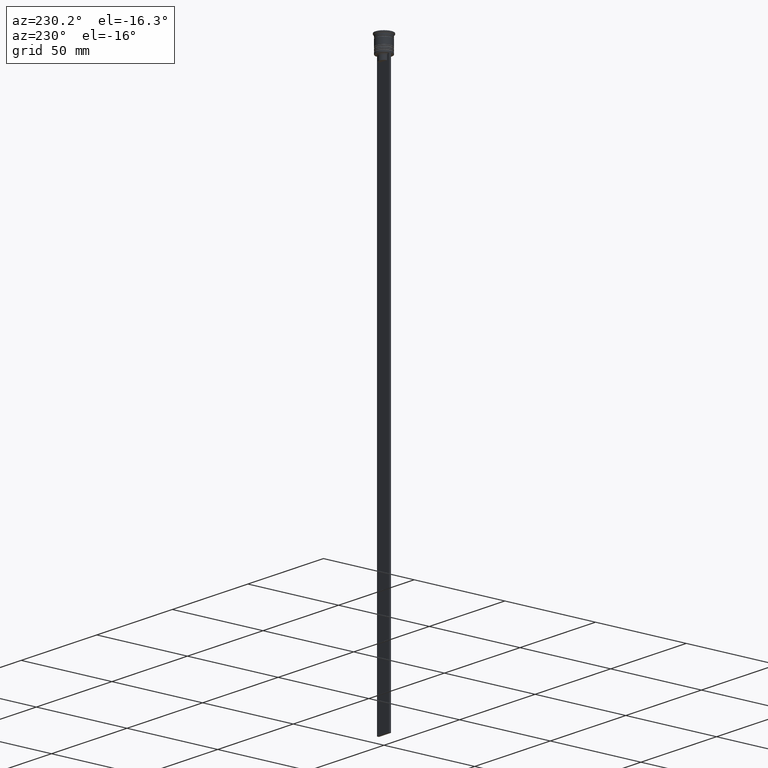
[diagram: clean part render]
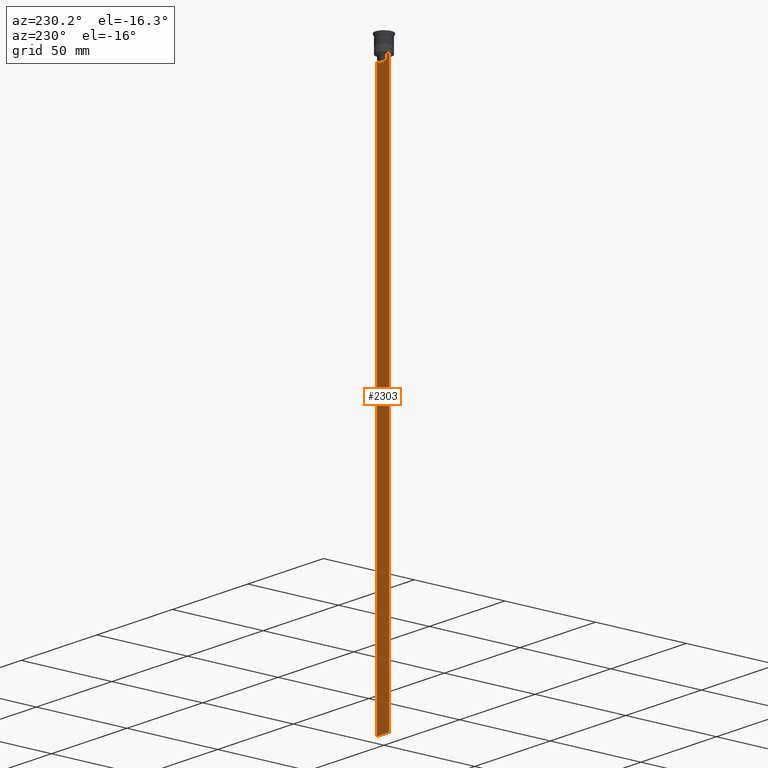
[diagram: same view with one face highlighted and labeled with its STEP entity id]
A machine part, auxiliary view. The second image highlights one B-rep face of the part: STEP entity #2303.
In plain terms, the highlighted planar face has unit normal (0, -1, -0).
Its self-contained STEP definition (entity closure, byte-faithful):
#11 = CARTESIAN_POINT ( 'NONE',  ( -3.110064308016796897, 0.4999999999999995559, -9.500000000000000000 ) ) ;
#17 = EDGE_CURVE ( 'NONE', #2202, #622, #85, .T. ) ;
#85 = LINE ( 'NONE', #1483, #173 ) ;
#92 = DIRECTION ( 'NONE',  ( -1.000000000000000000, 0.000000000000000000, 0.000000000000000000 ) ) ;
#106 = DIRECTION ( 'NONE',  ( 1.000000000000000000, 0.000000000000000000, 0.000000000000000000 ) ) ;
#158 = ORIENTED_EDGE ( 'NONE', *, *, #450, .F. ) ;
#159 = CARTESIAN_POINT ( 'NONE',  ( 4.000000000000005329, 0.4999999999999995559, -1.437742251701450202 ) ) ;
#169 = VERTEX_POINT ( 'NONE', #1027 ) ;
#173 = VECTOR ( 'NONE', #1311, 1000.000000000000000 ) ;
#180 = VECTOR ( 'NONE', #92, 1000.000000000000000 ) ;
#186 = VERTEX_POINT ( 'NONE', #1581 ) ;
#212 = ORIENTED_EDGE ( 'NONE', *, *, #1230, .T. ) ;
#279 = CARTESIAN_POINT ( 'NONE',  ( 4.000000000000005329, 0.4999999999999995559, -9.500000000000000000 ) ) ;
#351 = DIRECTION ( 'NONE',  ( 0.000000000000000000, 0.000000000000000000, -1.000000000000000000 ) ) ;
#364 = EDGE_CURVE ( 'NONE', #1944, #1057, #944, .T. ) ;
#413 = CARTESIAN_POINT ( 'NONE',  ( 0.000000000000000000, 0.4999999999999995559, -12.50000000000000000 ) ) ;
#422 = CARTESIAN_POINT ( 'NONE',  ( -3.999999999999994671, 0.4999999999999997780, -9.500000000000000000 ) ) ;
#450 = EDGE_CURVE ( 'NONE', #2202, #2246, #1905, .T. ) ;
#468 = EDGE_LOOP ( 'NONE', ( #1778, #212, #1034, #561, #616, #1512, #1524, #1326, #699, #158 ) ) ;
#503 = B_SPLINE_CURVE_WITH_KNOTS ( 'NONE', 3,
 ( #11, #1825, #2004, #554 ),
 .UNSPECIFIED., .F., .F.,
 ( 4, 4 ),
 ( 0.005378271293598279809, 0.006090816219555997280 ),
 .UNSPECIFIED. ) ;
#520 = CARTESIAN_POINT ( 'NONE',  ( 2.602402735934617350, 0.4999999999999995559, -12.50000000000000000 ) ) ;
#554 = CARTESIAN_POINT ( 'NONE',  ( -2.602402735934617350, 0.4999999999999995559, -10.00000000000000178 ) ) ;
#561 = ORIENTED_EDGE ( 'NONE', *, *, #849, .T. ) ;
#616 = ORIENTED_EDGE ( 'NONE', *, *, #2214, .T. ) ;
#621 = LINE ( 'NONE', #1882, #1063 ) ;
#622 = VERTEX_POINT ( 'NONE', #1023 ) ;
#649 = CARTESIAN_POINT ( 'NONE',  ( 4.000000000000005329, 0.4999999999999995559, -1.437742251701450202 ) ) ;
#699 = ORIENTED_EDGE ( 'NONE', *, *, #2291, .T. ) ;
#718 = VECTOR ( 'NONE', #106, 1000.000000000000000 ) ;
#800 = AXIS2_PLACEMENT_3D ( 'NONE', #649, #1020, #1046 ) ;
#820 = CARTESIAN_POINT ( 'NONE',  ( 4.000000000000005329, 0.4999999999999995559, -309.5000000000000000 ) ) ;
#821 = LINE ( 'NONE', #1549, #1720 ) ;
#849 = EDGE_CURVE ( 'NONE', #169, #1205, #1132, .T. ) ;
#915 = B_SPLINE_CURVE_WITH_KNOTS ( 'NONE', 3,
 ( #2129, #2105, #1016, #2314 ),
 .UNSPECIFIED., .F., .F.,
 ( 4, 4 ),
 ( 0.01295151922336847637, 0.01367164596165162602 ),
 .UNSPECIFIED. ) ;
#944 = LINE ( 'NONE', #159, #1173 ) ;
#1016 = CARTESIAN_POINT ( 'NONE',  ( 2.941045828809989438, 0.4999999999999995559, -9.666875663357577864 ) ) ;
#1020 = DIRECTION ( 'NONE',  ( 0.000000000000000000, -1.000000000000000000, -0.000000000000000000 ) ) ;
#1023 = CARTESIAN_POINT ( 'NONE',  ( -3.110064308016796897, 0.4999999999999995559, -9.500000000000000000 ) ) ;
#1027 = CARTESIAN_POINT ( 'NONE',  ( -2.602402735934617350, 0.4999999999999995559, -12.50000000000000000 ) ) ;
#1032 = CARTESIAN_POINT ( 'NONE',  ( 2.602402735934617350, 0.4999999999999995559, -10.00000000000000178 ) ) ;
#1034 = ORIENTED_EDGE ( 'NONE', *, *, #2156, .T. ) ;
#1046 = DIRECTION ( 'NONE',  ( 0.000000000000000000, 0.000000000000000000, -1.000000000000000000 ) ) ;
#1057 = VERTEX_POINT ( 'NONE', #820 ) ;
#1063 = VECTOR ( 'NONE', #1325, 1000.000000000000000 ) ;
#1064 = VECTOR ( 'NONE', #1540, 1000.000000000000000 ) ;
#1132 = LINE ( 'NONE', #413, #1567 ) ;
#1173 = VECTOR ( 'NONE', #351, 1000.000000000000000 ) ;
#1202 = CARTESIAN_POINT ( 'NONE',  ( -3.999999999999994671, 0.4999999999999995559, -309.5000000000000000 ) ) ;
#1205 = VERTEX_POINT ( 'NONE', #520 ) ;
#1230 = EDGE_CURVE ( 'NONE', #622, #1701, #503, .T. ) ;
#1238 = LINE ( 'NONE', #279, #718 ) ;
#1311 = DIRECTION ( 'NONE',  ( 1.000000000000000000, 0.000000000000000000, 0.000000000000000000 ) ) ;
#1325 = DIRECTION ( 'NONE',  ( 0.000000000000000000, 0.000000000000000000, -1.000000000000000000 ) ) ;
#1326 = ORIENTED_EDGE ( 'NONE', *, *, #364, .T. ) ;
#1454 = VERTEX_POINT ( 'NONE', #1032 ) ;
#1483 = CARTESIAN_POINT ( 'NONE',  ( 4.000000000000005329, 0.4999999999999995559, -9.500000000000000000 ) ) ;
#1512 = ORIENTED_EDGE ( 'NONE', *, *, #1546, .T. ) ;
#1524 = ORIENTED_EDGE ( 'NONE', *, *, #2248, .T. ) ;
#1540 = DIRECTION ( 'NONE',  ( 0.000000000000000000, 0.000000000000000000, -1.000000000000000000 ) ) ;
#1546 = EDGE_CURVE ( 'NONE', #1454, #186, #915, .T. ) ;
#1549 = CARTESIAN_POINT ( 'NONE',  ( 2.602402735934617350, 0.4999999999999995559, 0.000000000000000000 ) ) ;
#1559 = LINE ( 'NONE', #1745, #180 ) ;
#1567 = VECTOR ( 'NONE', #1913, 1000.000000000000000 ) ;
#1581 = CARTESIAN_POINT ( 'NONE',  ( 3.110064308016796897, 0.4999999999999995559, -9.500000000000000000 ) ) ;
#1701 = VERTEX_POINT ( 'NONE', #2000 ) ;
#1720 = VECTOR ( 'NONE', #2290, 1000.000000000000000 ) ;
#1745 = CARTESIAN_POINT ( 'NONE',  ( 4.000000000000005329, 0.4999999999999995559, -309.5000000000000000 ) ) ;
#1749 = CARTESIAN_POINT ( 'NONE',  ( 4.000000000000005329, 0.4999999999999995559, -9.500000000000000000 ) ) ;
#1778 = ORIENTED_EDGE ( 'NONE', *, *, #17, .T. ) ;
#1825 = CARTESIAN_POINT ( 'NONE',  ( -2.941047749529105193, 0.4999999999999995559, -9.666873766989334982 ) ) ;
#1882 = CARTESIAN_POINT ( 'NONE',  ( -2.602402735934617350, 0.4999999999999995559, 0.000000000000000000 ) ) ;
#1905 = LINE ( 'NONE', #2273, #1064 ) ;
#1913 = DIRECTION ( 'NONE',  ( 1.000000000000000000, 0.000000000000000000, 0.000000000000000000 ) ) ;
#1942 = FACE_OUTER_BOUND ( 'NONE', #468, .T. ) ;
#1944 = VERTEX_POINT ( 'NONE', #1749 ) ;
#2000 = CARTESIAN_POINT ( 'NONE',  ( -2.602402735934617350, 0.4999999999999995559, -10.00000000000000178 ) ) ;
#2004 = CARTESIAN_POINT ( 'NONE',  ( -2.771866350855961780, 0.4999999999999995559, -9.833580160334840059 ) ) ;
#2105 = CARTESIAN_POINT ( 'NONE',  ( 2.771864055700302476, 0.4999999999999995559, -9.833582414266677674 ) ) ;
#2129 = CARTESIAN_POINT ( 'NONE',  ( 2.602402735934617350, 0.4999999999999995559, -10.00000000000000178 ) ) ;
#2156 = EDGE_CURVE ( 'NONE', #1701, #169, #621, .T. ) ;
#2202 = VERTEX_POINT ( 'NONE', #422 ) ;
#2214 = EDGE_CURVE ( 'NONE', #1205, #1454, #821, .T. ) ;
#2246 = VERTEX_POINT ( 'NONE', #1202 ) ;
#2248 = EDGE_CURVE ( 'NONE', #186, #1944, #1238, .T. ) ;
#2273 = CARTESIAN_POINT ( 'NONE',  ( -3.999999999999994671, 0.4999999999999995559, -1.437742251701450202 ) ) ;
#2290 = DIRECTION ( 'NONE',  ( -0.000000000000000000, -0.000000000000000000, 1.000000000000000000 ) ) ;
#2291 = EDGE_CURVE ( 'NONE', #1057, #2246, #1559, .T. ) ;
#2303 = ADVANCED_FACE ( 'NONE', ( #1942 ), #2305, .F. ) ;
#2305 = PLANE ( 'NONE',  #800 ) ;
#2314 = CARTESIAN_POINT ( 'NONE',  ( 3.110064308016796897, 0.4999999999999995559, -9.500000000000000000 ) ) ;